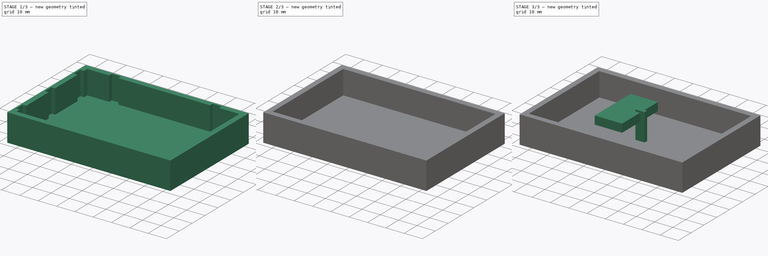
[diagram: build sequence overview — one tinted view per stage of 3, left to right]
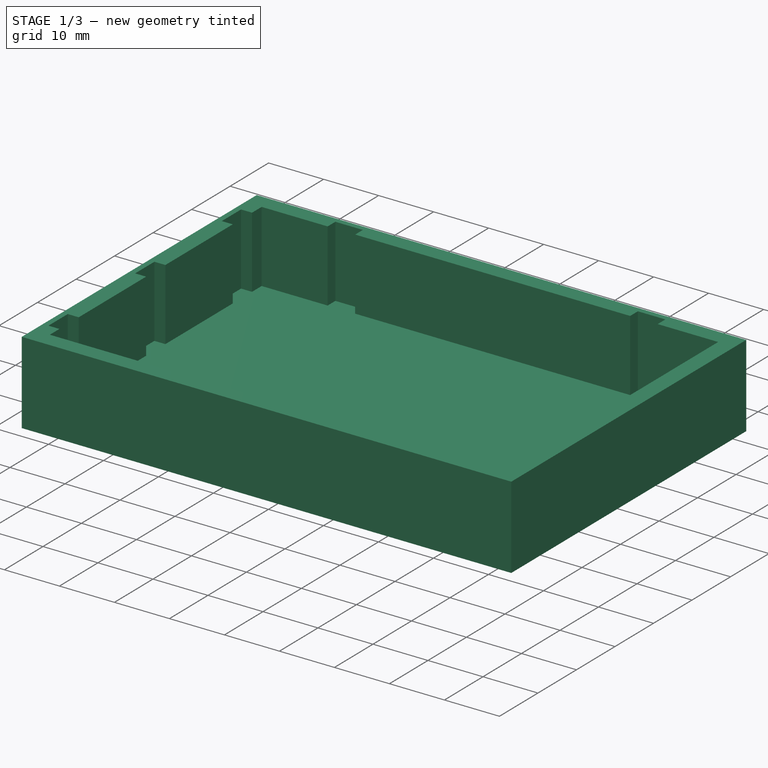
[diagram: stage 1 of 3 — iso view after this stage's code; geometry added in this stage tinted green]
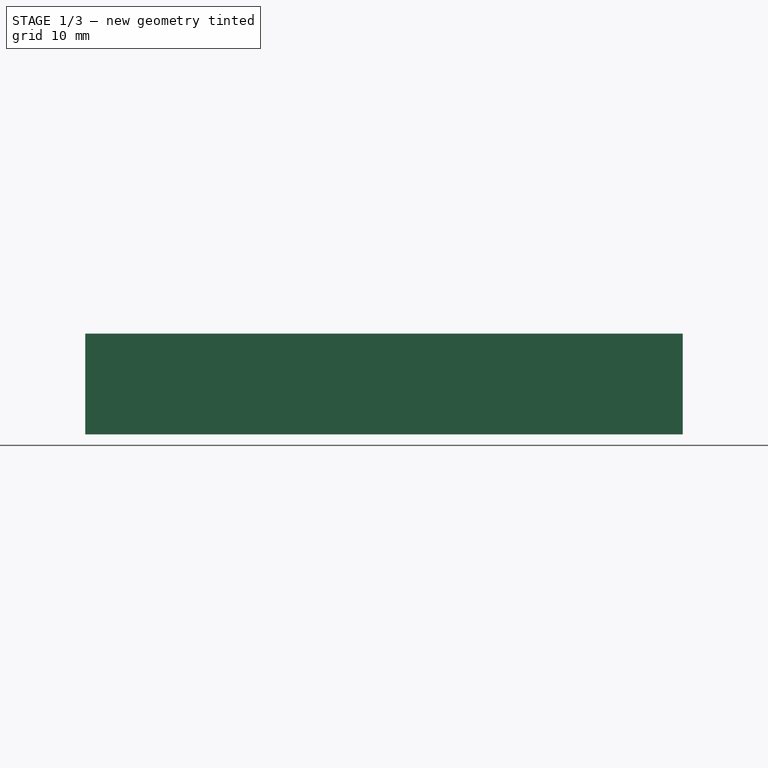
[diagram: stage 1 of 3 — front view after this stage's code; geometry added in this stage tinted green]
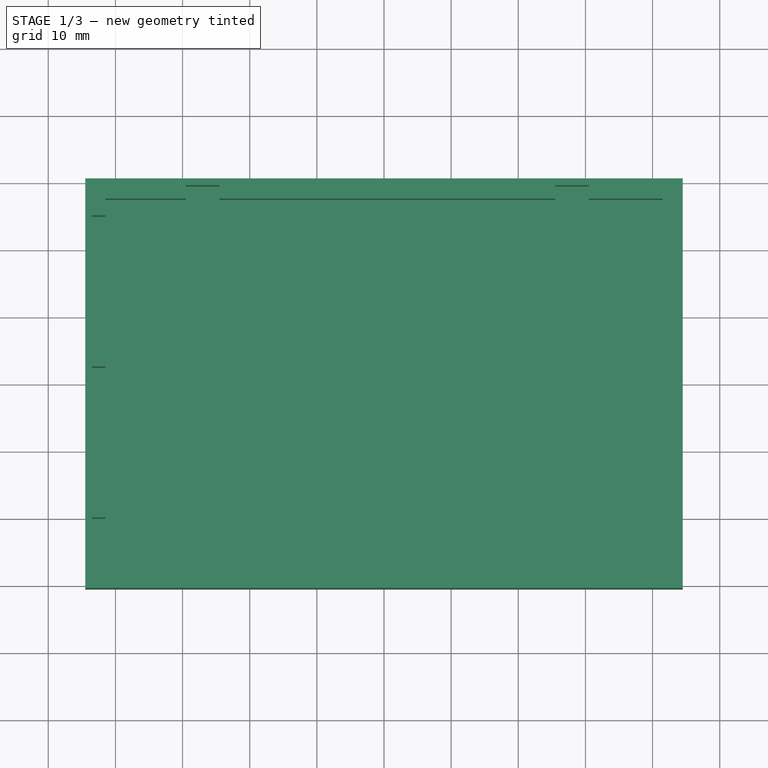
[diagram: stage 1 of 3 — top view after this stage's code; geometry added in this stage tinted green]
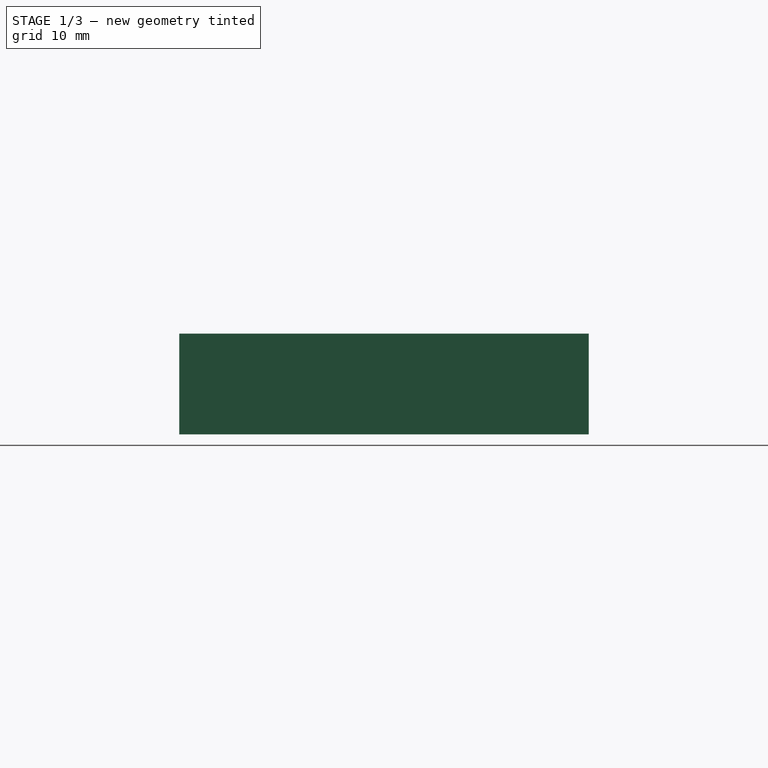
[diagram: stage 1 of 3 — right view after this stage's code; geometry added in this stage tinted green]
FCSTD DOCUMENT  (FreeCAD 0.16R6706 (Git))
Label: BreadboardCase
License: All rights reserved
LicenseURL: http://en.wikipedia.org/wiki/All_rights_reserved
objects: Part::Feature×8, Sketcher::SketchObject×4, PartDesign::Pad×4, Part::Cut×2, Part::MultiFuse×1
note: 23 computed .brp shape members not serialized (recipe doc carries the construction recipe); baked Part::Feature solids carry a one-line shape summary decoded from their .brp

FEATURE [Part::Feature] Pad001001002003003001  label="partBasePlain"
  shape: bbox 89 x 61 x 15 mm, 15 faces (baked)
FEATURE [Part::MultiFuse] Fusion  label="partBreadboardNotches"
  Shapes = -> [Pad001001002,Pad001001002001,Pad001001002002,Pad001001001,Pad001001]
FEATURE [Part::Cut] Cut
  Base = -> Pad001001002003003001
  Tool = -> Fusion
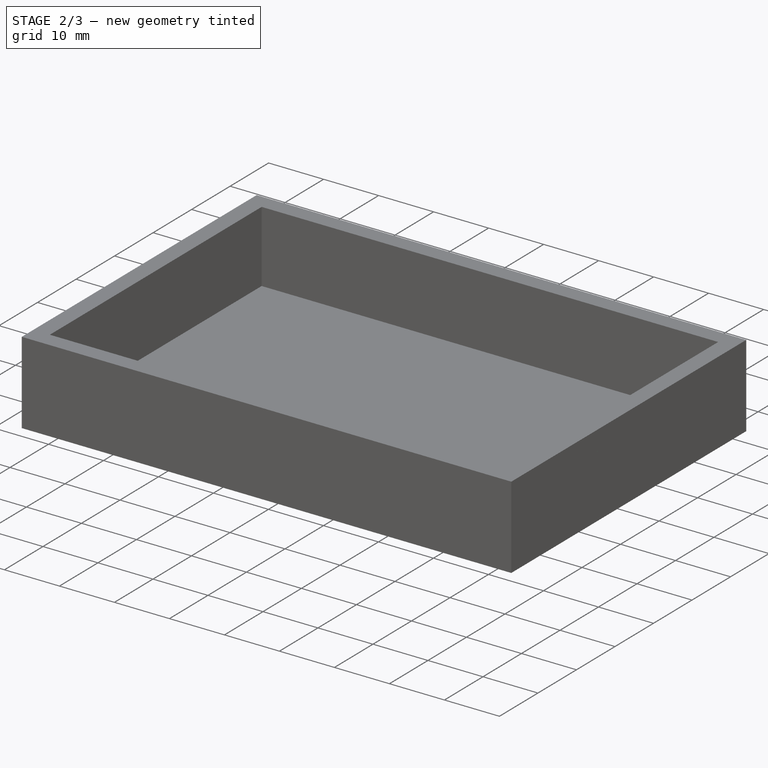
[diagram: stage 2 of 3 — iso view after this stage's code; geometry added in this stage tinted green]
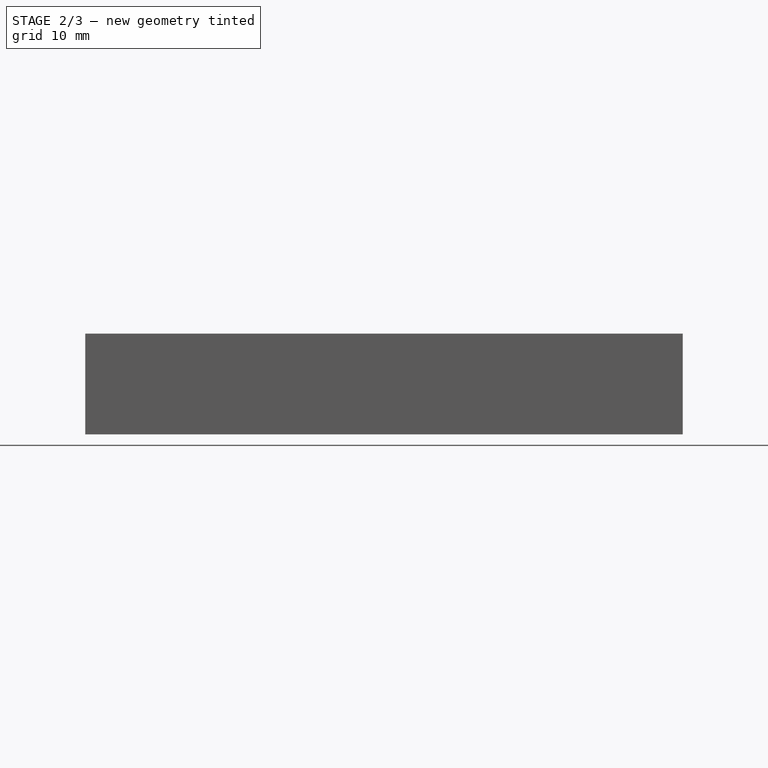
[diagram: stage 2 of 3 — front view after this stage's code; geometry added in this stage tinted green]
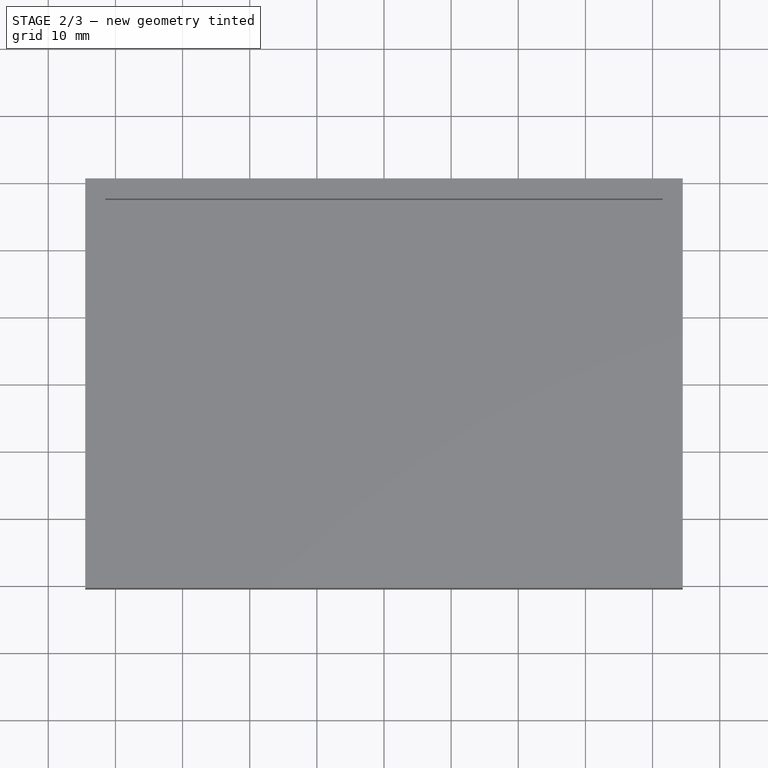
[diagram: stage 2 of 3 — top view after this stage's code; geometry added in this stage tinted green]
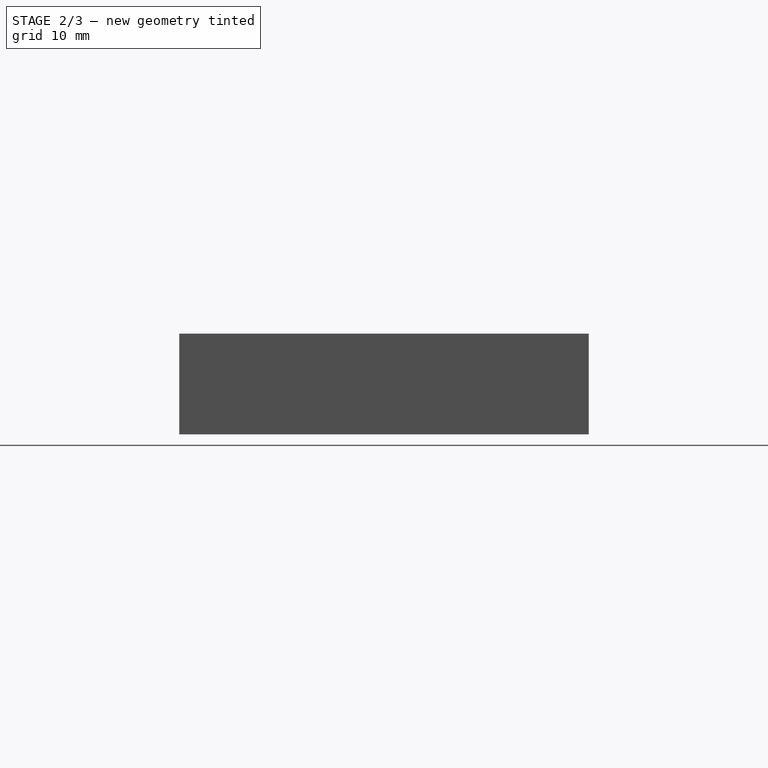
[diagram: stage 2 of 3 — right view after this stage's code; geometry added in this stage tinted green]
FEATURE [Sketcher::SketchObject] Sketch  label="baseWalls"
  sketch-geometry (8):
    g0: LineSegment StartX=-41.5 StartY=27.5 StartZ=0 EndX=41.5 EndY=27.5 EndZ=0
    g1: LineSegment StartX=41.5 StartY=27.5 StartZ=0 EndX=41.5 EndY=-27.5 EndZ=0
    g2: LineSegment StartX=41.5 StartY=-27.5 StartZ=0 EndX=-41.5 EndY=-27.5 EndZ=0
    g3: LineSegment StartX=-41.5 StartY=-27.5 StartZ=0 EndX=-41.5 EndY=27.5 EndZ=0
    g4: LineSegment StartX=-44.5 StartY=30.5 StartZ=0 EndX=44.5 EndY=30.5 EndZ=0
    g5: LineSegment StartX=44.5 StartY=30.5 StartZ=0 EndX=44.5 EndY=-30.5 EndZ=0
    g6: LineSegment StartX=44.5 StartY=-30.5 StartZ=0 EndX=-44.5 EndY=-30.5 EndZ=0
    g7: LineSegment StartX=-44.5 StartY=-30.5 StartZ=0 EndX=-44.5 EndY=30.5 EndZ=0
  constraints (22):
    c: Coincident(g0,g1)
    c: Coincident(g1,g2)
    c: Coincident(g2,g3)
    c: Coincident(g3,g0)
    c: Horizontal(g0)
    c: Horizontal(g2)
    c: Vertical(g1)
    c: Vertical(g3)
    c: Coincident(g4,g5)
    c: Coincident(g5,g6)
    c: Coincident(g6,g7)
    c: Coincident(g7,g4)
    c: Horizontal(g4)
    c: Horizontal(g6)
    c: Vertical(g5)
    c: Vertical(g7)
    c: Symmetric(g1,g0,g-1)
    c: Symmetric(g4,g5,g-1)
    c: DistanceX(g4,g0) = 3
    c: DistanceY(g0,g4) = 3
    c: DistanceX(g0,g0) = 83
    c: DistanceY(g3,g3) = 55
FEATURE [PartDesign::Pad] Pad
  Length = 13
  Length2 = 100
  Sketch = -> Sketch
  Type = 0
FEATURE [Part::Feature] Pad001001002003002  label="partBaseWalls"
  shape: bbox 89 x 61 x 13 mm, 10 faces (baked)
FEATURE [Sketcher::SketchObject] Sketch003  label="baseBottom"
  ExternalGeometry = -> [Pad]
  Placement = pos=(0,0,0) rot=(1,0,0;3.14159rad)
  Support = -> Pad [Face9]
  sketch-geometry (4):
    g0: LineSegment StartX=-44.5 StartY=30.5 StartZ=0 EndX=44.5 EndY=30.5 EndZ=0
    g1: LineSegment StartX=44.5 StartY=30.5 StartZ=0 EndX=44.5 EndY=-30.5 EndZ=0
    g2: LineSegment StartX=44.5 StartY=-30.5 StartZ=0 EndX=-44.5 EndY=-30.5 EndZ=0
    g3: LineSegment StartX=-44.5 StartY=-30.5 StartZ=0 EndX=-44.5 EndY=30.5 EndZ=0
  constraints (10):
    c: Coincident(g0,g1)
    c: Coincident(g1,g2)
    c: Coincident(g2,g3)
    c: Coincident(g3,g0)
    c: Horizontal(g0)
    c: Horizontal(g2)
    c: Vertical(g1)
    c: Vertical(g3)
    c: Coincident(g0,g-3)
    c: Coincident(g1,g-4)
FEATURE [PartDesign::Pad] Pad001001002003003
  Length = 2
  Length2 = 100
  Sketch = -> Sketch003
  Type = 0
FEATURE [Part::Feature] Pad001001002003003002  label="partBoardCutout"
  Placement = pos=(48,0,0) rot=(0.57735,0.57735,0.57735;2.0944rad)
  shape: bbox 15 x 28 x 4.5 mm, 6 faces (baked)
FEATURE [Part::Cut] Cut001
  Base = -> Cut
  Tool = -> Pad001001002003003002
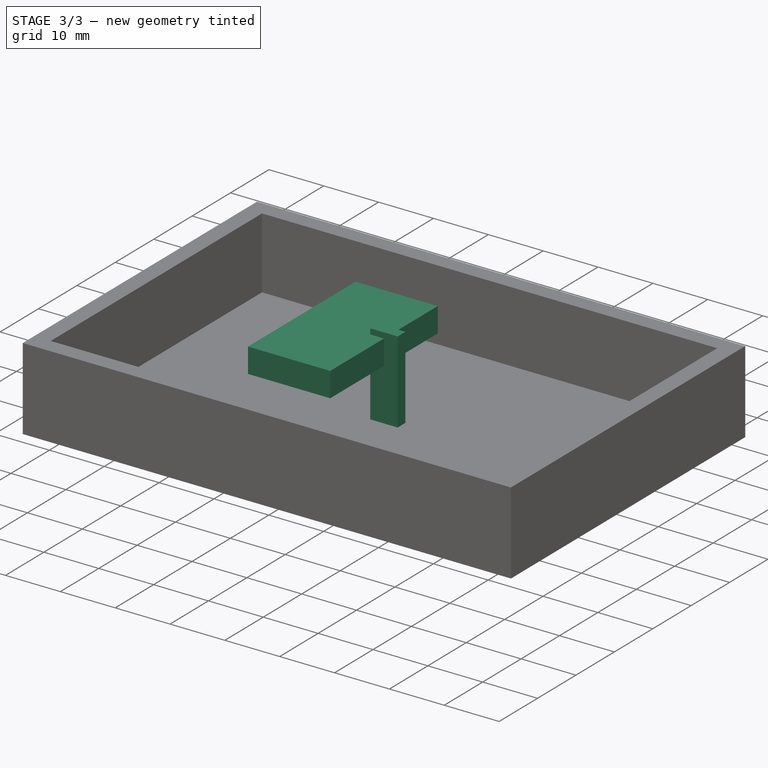
[diagram: stage 3 of 3 — iso view after this stage's code; geometry added in this stage tinted green]
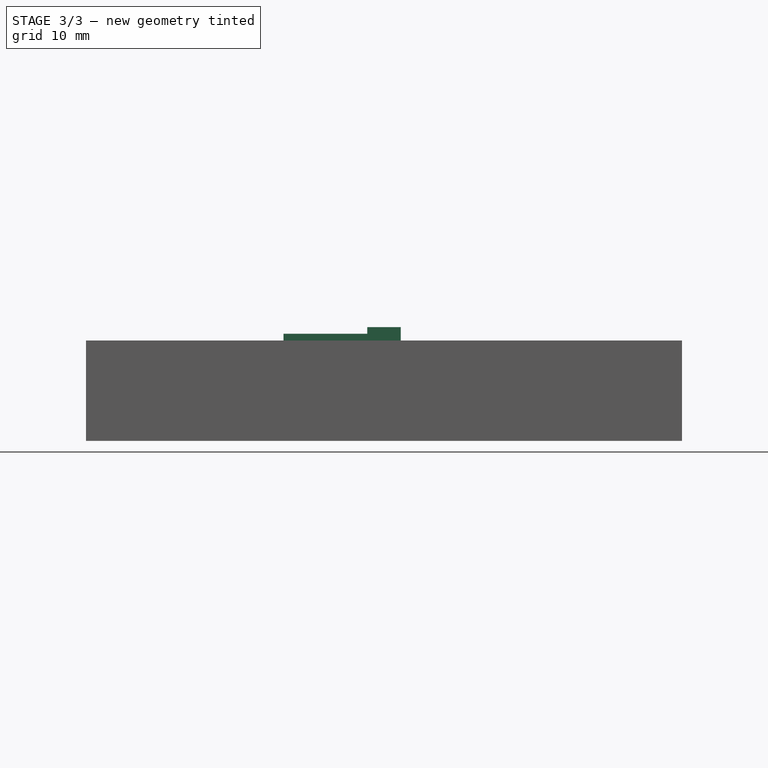
[diagram: stage 3 of 3 — front view after this stage's code; geometry added in this stage tinted green]
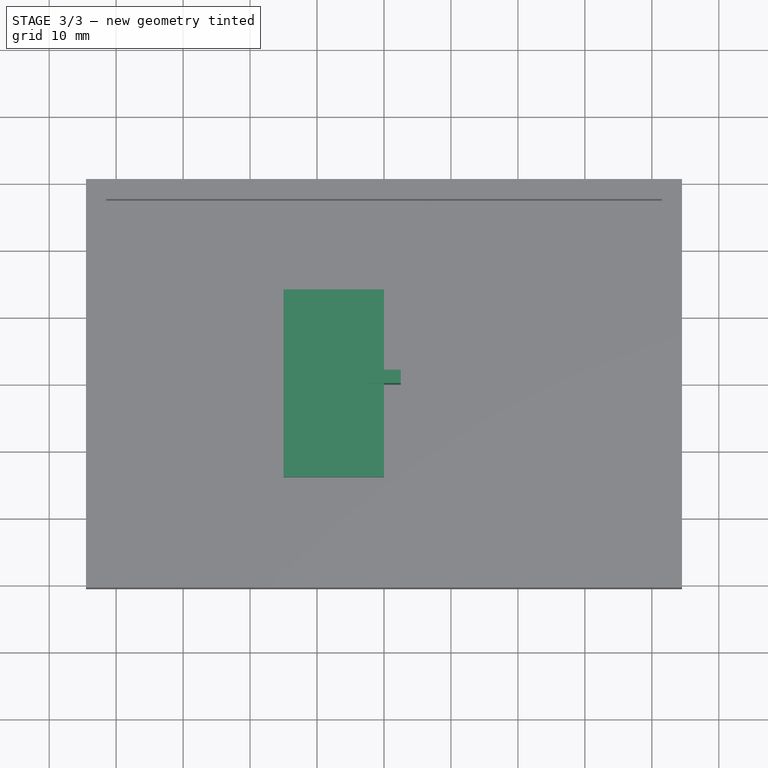
[diagram: stage 3 of 3 — top view after this stage's code; geometry added in this stage tinted green]
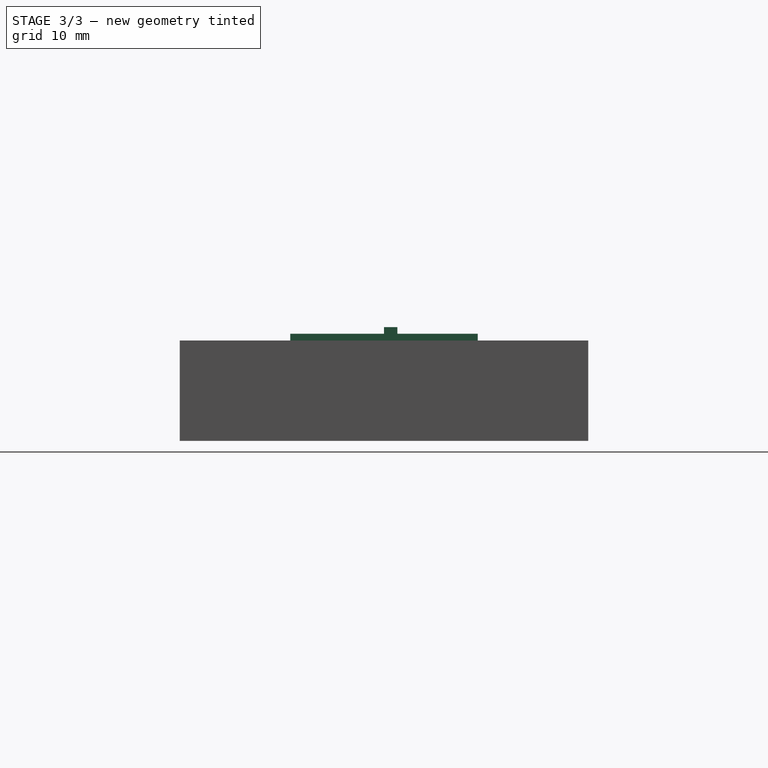
[diagram: stage 3 of 3 — right view after this stage's code; geometry added in this stage tinted green]
FEATURE [Sketcher::SketchObject] Sketch001  label="dovetailCutout"
  sketch-geometry (4):
    g0: LineSegment StartX=-2.5 StartY=2 StartZ=0 EndX=2.5 EndY=2 EndZ=0
    g1: LineSegment StartX=2.5 StartY=2 StartZ=0 EndX=2.5 EndY=0 EndZ=0
    g2: LineSegment StartX=2.5 StartY=0 StartZ=0 EndX=-2.5 EndY=0 EndZ=0
    g3: LineSegment StartX=-2.5 StartY=0 StartZ=0 EndX=-2.5 EndY=2 EndZ=0
  constraints (11):
    c: Coincident(g0,g1)
    c: Coincident(g1,g2)
    c: Coincident(g2,g3)
    c: Coincident(g3,g0)
    c: Horizontal(g0)
    c: Horizontal(g2)
    c: Vertical(g1)
    c: Vertical(g3)
    c: Symmetric(g1,g2,g-1)
    c: DistanceX(g0,g0) = 5
    c: DistanceY(g3,g3) = 2
FEATURE [PartDesign::Pad] Pad001
  Length = 15
  Length2 = 100
  Sketch = -> Sketch001
  Type = 0
FEATURE [Part::Feature] Pad001001  label="partDovetailCutout001"
  Placement = pos=(-27,27.5,0) rot=(0,0,1;0rad)
  shape: bbox 5 x 2 x 15 mm, 6 faces (baked)
FEATURE [Part::Feature] Pad001001001  label="partDovetailCutout002"
  Placement = pos=(28,27.5,0) rot=(0,0,1;0rad)
  shape: bbox 5 x 2 x 15 mm, 6 faces (baked)
FEATURE [Part::Feature] Pad001001002  label="partDoveTailCutout003"
  Placement = pos=(-41.5,22.5,0) rot=(0,0,1;1.5708rad)
  shape: bbox 2 x 5 x 15 mm, 6 faces (baked)
FEATURE [Part::Feature] Pad001001002001  label="partDoveTailCutout004"
  Placement = pos=(-41.5,0,0) rot=(0,0,1;1.5708rad)
  shape: bbox 2 x 5 x 15 mm, 6 faces (baked)
FEATURE [Part::Feature] Pad001001002002  label="partDoveTailCutout005"
  Placement = pos=(-41.5,-22.5,0) rot=(0,0,1;1.5708rad)
  shape: bbox 2 x 5 x 15 mm, 6 faces (baked)
FEATURE [Sketcher::SketchObject] Sketch002  label="boardCutout"
  Placement = pos=(0,0,0) rot=(0.57735,0.57735,0.57735;2.0944rad)
  sketch-geometry (4):
    g0: LineSegment StartX=-14 StartY=14 StartZ=0 EndX=14 EndY=14 EndZ=0
    g1: LineSegment StartX=14 StartY=14 StartZ=0 EndX=14 EndY=9.5 EndZ=0
    g2: LineSegment StartX=14 StartY=9.5 StartZ=0 EndX=-14 EndY=9.5 EndZ=0
    g3: LineSegment StartX=-14 StartY=9.5 StartZ=0 EndX=-14 EndY=14 EndZ=0
  constraints (12):
    c: Coincident(g0,g1)
    c: Coincident(g1,g2)
    c: Coincident(g2,g3)
    c: Coincident(g3,g0)
    c: Horizontal(g0)
    c: Horizontal(g2)
    c: Vertical(g1)
    c: Vertical(g3)
    c: Symmetric(g0,g0,g-2)
    c: DistanceY(g-1,g1) = 9.5
    c: DistanceY(g-1,g0) = 14
    c: DistanceX(g0,g0) = 28
FEATURE [PartDesign::Pad] Pad001001002003
  Length = 15
  Length2 = 100
  Placement = pos=(0,0,0) rot=(0.57735,0.57735,0.57735;2.0944rad)
  Reversed = true
  Sketch = -> Sketch002
  Type = 0
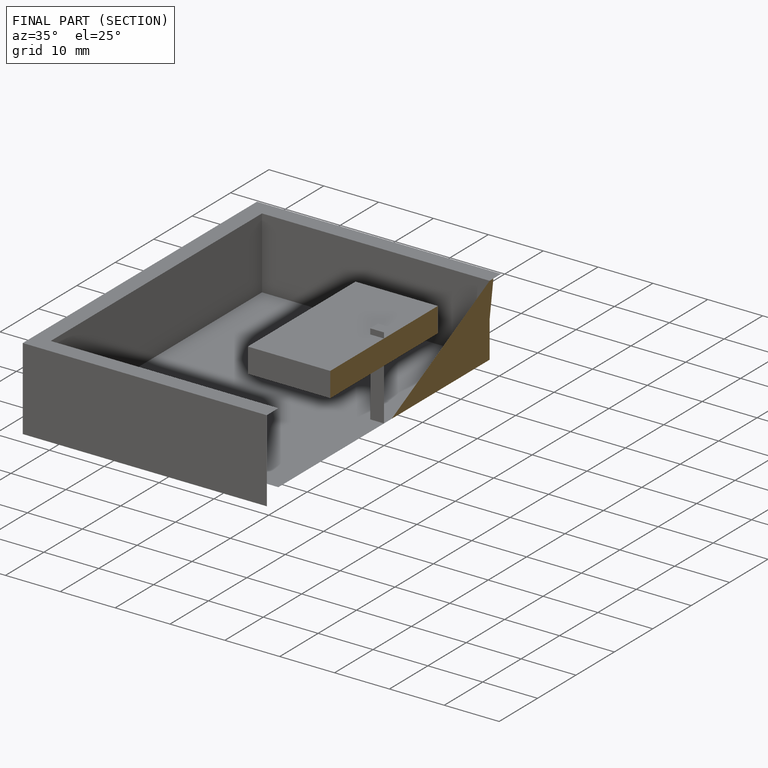
[diagram: finished part — half-section view (interior)]
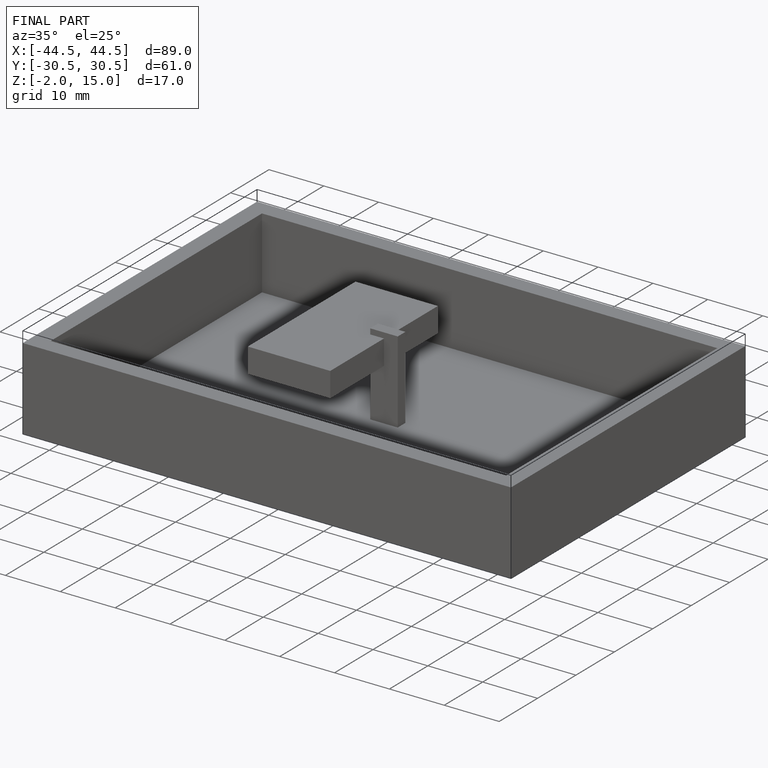
[diagram: finished part — iso view with bounding-box wireframe]
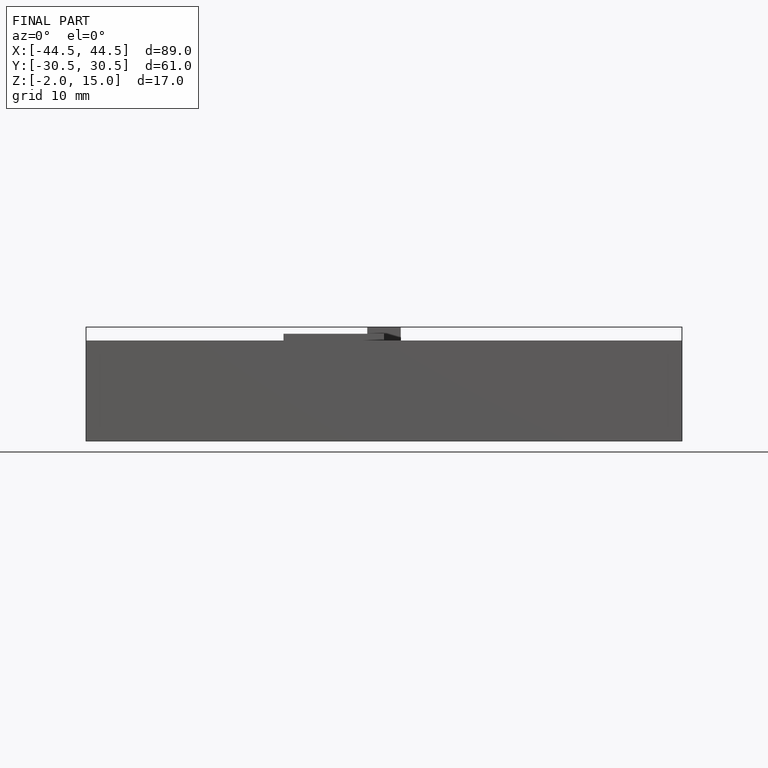
[diagram: finished part — front view with bounding-box wireframe]
